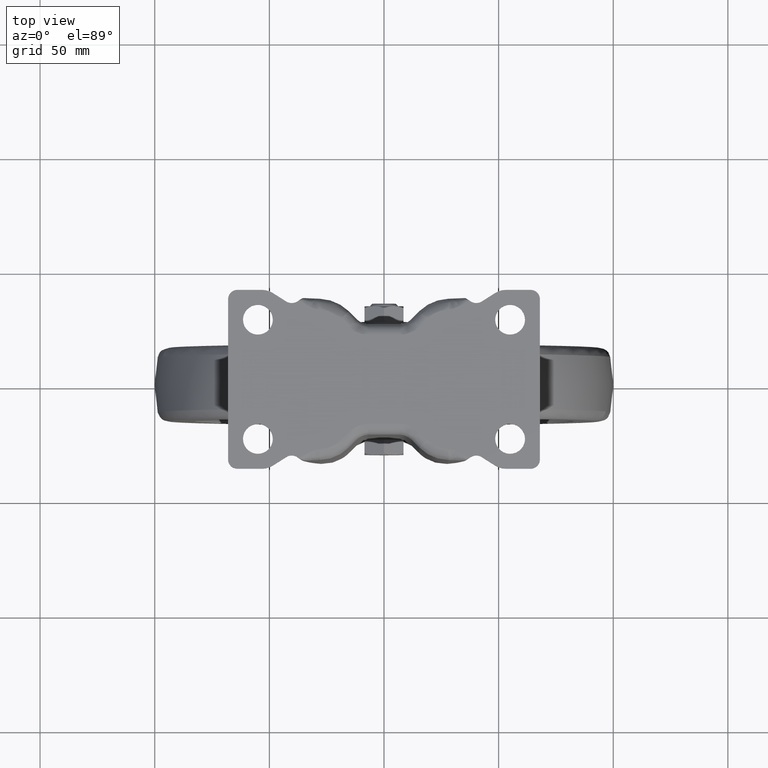
[diagram: clean part render]
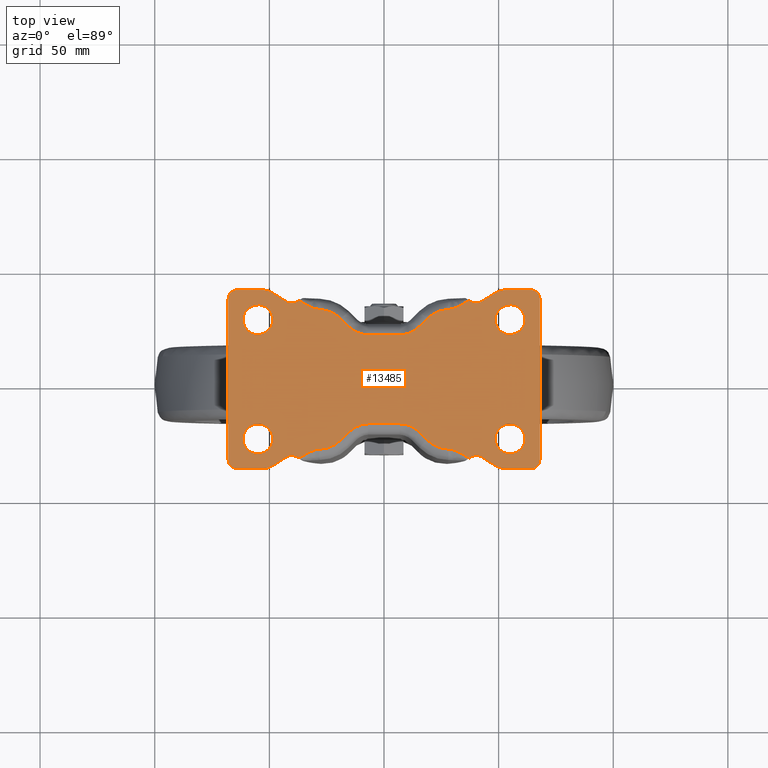
[diagram: same view with one face highlighted and labeled with its STEP entity id]
A machine part, top view. The second image highlights one B-rep face of the part: STEP entity #13485.
In plain terms, the highlighted face is a freeform B-spline surface patch.
Its self-contained STEP definition (entity closure, byte-faithful):
#4586=CARTESIAN_POINT('',(-55.396815507575141,19.512123810294479,-4.163336E-017));
#4587=VERTEX_POINT('',#4586);
#4593=CARTESIAN_POINT('',(-48.500000000000000,26.0,0.0));
#4594=VERTEX_POINT('',#4593);
#4595=CARTESIAN_POINT('',(-55.396815507575141,19.512123810294479,0.0));
#4596=CARTESIAN_POINT('',(-55.198592961740950,19.499999999999996,0.0));
#4597=CARTESIAN_POINT('',(-55.0,19.500000000000000,0.0));
#4598=CARTESIAN_POINT('',(-48.500000000000014,19.500000000000007,0.0));
#4599=CARTESIAN_POINT('',(-48.500000000000000,26.0,0.0));
#4607=(BOUNDED_CURVE()B_SPLINE_CURVE(2,(#4595,#4596,#4597,#4598,#4599),.UNSPECIFIED.,.F.,.U.)B_SPLINE_CURVE_WITH_KNOTS((3,2,3),(0.239332962226049,0.250000000000000,0.500000000000000),.UNSPECIFIED.)CURVE()GEOMETRIC_REPRESENTATION_ITEM()RATIONAL_B_SPLINE_CURVE((0.976072041639084,0.987502787884732,1.0,0.707106781186547,1.0))REPRESENTATION_ITEM(''));
#4608=EDGE_CURVE('',#4587,#4594,#4607,.T.);
#4610=CARTESIAN_POINT('',(-54.603184492424859,32.487876189705517,-4.163336E-017));
#4611=VERTEX_POINT('',#4610);
#4612=CARTESIAN_POINT('',(-48.500000000000000,26.0,0.0));
#4613=CARTESIAN_POINT('',(-48.500000000000014,32.114589434321836,0.0));
#4614=CARTESIAN_POINT('',(-54.603184492424859,32.487876189705531,0.0));
#4622=(BOUNDED_CURVE()B_SPLINE_CURVE(2,(#4612,#4613,#4614),.UNSPECIFIED.,.F.,.U.)B_SPLINE_CURVE_WITH_KNOTS((3,3),(0.500000000000000,0.739332962226049),.UNSPECIFIED.)CURVE()GEOMETRIC_REPRESENTATION_ITEM()RATIONAL_B_SPLINE_CURVE((1.0,0.719603993301816,0.976072041639084))REPRESENTATION_ITEM(''));
#4623=EDGE_CURVE('',#4594,#4611,#4622,.T.);
#4697=CARTESIAN_POINT('',(-61.500000000000000,26.0,0.0));
#4698=VERTEX_POINT('',#4697);
#4699=CARTESIAN_POINT('',(-54.603184492424859,32.487876189705517,0.0));
#4700=CARTESIAN_POINT('',(-54.801407038259050,32.499999999999986,0.0));
#4701=CARTESIAN_POINT('',(-55.0,32.500000000000000,0.0));
#4702=CARTESIAN_POINT('',(-61.500000000000021,32.499999999999993,0.0));
#4703=CARTESIAN_POINT('',(-61.500000000000000,26.0,0.0));
#4711=(BOUNDED_CURVE()B_SPLINE_CURVE(2,(#4699,#4700,#4701,#4702,#4703),.UNSPECIFIED.,.F.,.U.)B_SPLINE_CURVE_WITH_KNOTS((3,2,3),(0.739332962226049,0.750000000000000,1.0),.UNSPECIFIED.)CURVE()GEOMETRIC_REPRESENTATION_ITEM()RATIONAL_B_SPLINE_CURVE((0.976072041639084,0.987502787884731,1.0,0.707106781186547,1.0))REPRESENTATION_ITEM(''));
#4712=EDGE_CURVE('',#4611,#4698,#4711,.T.);
#4714=CARTESIAN_POINT('',(-61.500000000000000,26.0,0.0));
#4715=CARTESIAN_POINT('',(-61.500000000000014,19.885410565678168,0.0));
#4716=CARTESIAN_POINT('',(-55.396815507575141,19.512123810294472,0.0));
#4724=(BOUNDED_CURVE()B_SPLINE_CURVE(2,(#4714,#4715,#4716),.UNSPECIFIED.,.F.,.U.)B_SPLINE_CURVE_WITH_KNOTS((3,3),(0.0,0.239332962226049),.UNSPECIFIED.)CURVE()GEOMETRIC_REPRESENTATION_ITEM()RATIONAL_B_SPLINE_CURVE((1.0,0.719603993301816,0.976072041639084))REPRESENTATION_ITEM(''));
#4725=EDGE_CURVE('',#4698,#4587,#4724,.T.);
#4768=CARTESIAN_POINT('',(-55.396815507575127,-32.487876189705531,-4.163336E-017));
#4769=VERTEX_POINT('',#4768);
#4775=CARTESIAN_POINT('',(-48.500000000000000,-26.0,0.0));
#4776=VERTEX_POINT('',#4775);
#4777=CARTESIAN_POINT('',(-55.396815507575134,-32.487876189705531,0.0));
#4778=CARTESIAN_POINT('',(-55.198592961740950,-32.500000000000000,0.0));
#4779=CARTESIAN_POINT('',(-55.0,-32.500000000000000,0.0));
#4780=CARTESIAN_POINT('',(-48.500000000000014,-32.499999999999993,0.0));
#4781=CARTESIAN_POINT('',(-48.500000000000000,-26.0,0.0));
#4789=(BOUNDED_CURVE()B_SPLINE_CURVE(2,(#4777,#4778,#4779,#4780,#4781),.UNSPECIFIED.,.F.,.U.)B_SPLINE_CURVE_WITH_KNOTS((3,2,3),(0.239332962226049,0.250000000000000,0.500000000000000),.UNSPECIFIED.)CURVE()GEOMETRIC_REPRESENTATION_ITEM()RATIONAL_B_SPLINE_CURVE((0.976072041639084,0.987502787884732,1.0,0.707106781186547,1.0))REPRESENTATION_ITEM(''));
#4790=EDGE_CURVE('',#4769,#4776,#4789,.T.);
#4792=CARTESIAN_POINT('',(-54.603184492424859,-19.512123810294479,-4.163336E-017));
#4793=VERTEX_POINT('',#4792);
#4794=CARTESIAN_POINT('',(-48.500000000000000,-26.0,0.0));
#4795=CARTESIAN_POINT('',(-48.500000000000014,-19.885410565678168,0.0));
#4796=CARTESIAN_POINT('',(-54.603184492424859,-19.512123810294479,0.0));
#4804=(BOUNDED_CURVE()B_SPLINE_CURVE(2,(#4794,#4795,#4796),.UNSPECIFIED.,.F.,.U.)B_SPLINE_CURVE_WITH_KNOTS((3,3),(0.500000000000000,0.739332962226049),.UNSPECIFIED.)CURVE()GEOMETRIC_REPRESENTATION_ITEM()RATIONAL_B_SPLINE_CURVE((1.0,0.719603993301816,0.976072041639084))REPRESENTATION_ITEM(''));
#4805=EDGE_CURVE('',#4776,#4793,#4804,.T.);
#4879=CARTESIAN_POINT('',(-61.500000000000000,-26.0,0.0));
#4880=VERTEX_POINT('',#4879);
#4881=CARTESIAN_POINT('',(-54.603184492424859,-19.512123810294469,0.0));
#4882=CARTESIAN_POINT('',(-54.801407038259050,-19.500000000000000,0.0));
#4883=CARTESIAN_POINT('',(-55.0,-19.500000000000000,0.0));
#4884=CARTESIAN_POINT('',(-61.500000000000021,-19.500000000000007,0.0));
#4885=CARTESIAN_POINT('',(-61.500000000000000,-26.0,0.0));
#4893=(BOUNDED_CURVE()B_SPLINE_CURVE(2,(#4881,#4882,#4883,#4884,#4885),.UNSPECIFIED.,.F.,.U.)B_SPLINE_CURVE_WITH_KNOTS((3,2,3),(0.739332962226049,0.750000000000000,1.0),.UNSPECIFIED.)CURVE()GEOMETRIC_REPRESENTATION_ITEM()RATIONAL_B_SPLINE_CURVE((0.976072041639084,0.987502787884731,1.0,0.707106781186547,1.0))REPRESENTATION_ITEM(''));
#4894=EDGE_CURVE('',#4793,#4880,#4893,.T.);
#4896=CARTESIAN_POINT('',(-61.500000000000000,-26.0,0.0));
#4897=CARTESIAN_POINT('',(-61.500000000000007,-32.114589434321850,0.0));
#4898=CARTESIAN_POINT('',(-55.396815507575134,-32.487876189705517,0.0));
#4906=(BOUNDED_CURVE()B_SPLINE_CURVE(2,(#4896,#4897,#4898),.UNSPECIFIED.,.F.,.U.)B_SPLINE_CURVE_WITH_KNOTS((3,3),(0.0,0.239332962226050),.UNSPECIFIED.)CURVE()GEOMETRIC_REPRESENTATION_ITEM()RATIONAL_B_SPLINE_CURVE((1.0,0.719603993301816,0.976072041639085))REPRESENTATION_ITEM(''));
#4907=EDGE_CURVE('',#4880,#4769,#4906,.T.);
#4950=CARTESIAN_POINT('',(54.603184492424873,19.512123810294479,-4.163336E-017));
#4951=VERTEX_POINT('',#4950);
#4957=CARTESIAN_POINT('',(61.500000000000000,26.0,0.0));
#4958=VERTEX_POINT('',#4957);
#4959=CARTESIAN_POINT('',(54.603184492424873,19.512123810294472,0.0));
#4960=CARTESIAN_POINT('',(54.801407038259050,19.500000000000004,0.0));
#4961=CARTESIAN_POINT('',(55.0,19.500000000000000,0.0));
#4962=CARTESIAN_POINT('',(61.500000000000021,19.500000000000007,0.0));
#4963=CARTESIAN_POINT('',(61.500000000000000,26.0,0.0));
#4971=(BOUNDED_CURVE()B_SPLINE_CURVE(2,(#4959,#4960,#4961,#4962,#4963),.UNSPECIFIED.,.F.,.U.)B_SPLINE_CURVE_WITH_KNOTS((3,2,3),(0.239332962226049,0.250000000000000,0.500000000000000),.UNSPECIFIED.)CURVE()GEOMETRIC_REPRESENTATION_ITEM()RATIONAL_B_SPLINE_CURVE((0.976072041639084,0.987502787884732,1.0,0.707106781186547,1.0))REPRESENTATION_ITEM(''));
#4972=EDGE_CURVE('',#4951,#4958,#4971,.T.);
#4974=CARTESIAN_POINT('',(55.396815507575127,32.487876189705517,-4.163336E-017));
#4975=VERTEX_POINT('',#4974);
#4976=CARTESIAN_POINT('',(61.500000000000000,26.0,0.0));
#4977=CARTESIAN_POINT('',(61.500000000000007,32.114589434321836,0.0));
#4978=CARTESIAN_POINT('',(55.396815507575134,32.487876189705517,0.0));
#4986=(BOUNDED_CURVE()B_SPLINE_CURVE(2,(#4976,#4977,#4978),.UNSPECIFIED.,.F.,.U.)B_SPLINE_CURVE_WITH_KNOTS((3,3),(0.500000000000000,0.739332962226050),.UNSPECIFIED.)CURVE()GEOMETRIC_REPRESENTATION_ITEM()RATIONAL_B_SPLINE_CURVE((1.0,0.719603993301816,0.976072041639085))REPRESENTATION_ITEM(''));
#4987=EDGE_CURVE('',#4958,#4975,#4986,.T.);
#5061=CARTESIAN_POINT('',(48.500000000000000,26.0,0.0));
#5062=VERTEX_POINT('',#5061);
#5063=CARTESIAN_POINT('',(55.396815507575134,32.487876189705517,0.0));
#5064=CARTESIAN_POINT('',(55.198592961740957,32.500000000000007,0.0));
#5065=CARTESIAN_POINT('',(55.0,32.500000000000000,0.0));
#5066=CARTESIAN_POINT('',(48.500000000000014,32.499999999999993,0.0));
#5067=CARTESIAN_POINT('',(48.500000000000000,26.0,0.0));
#5075=(BOUNDED_CURVE()B_SPLINE_CURVE(2,(#5063,#5064,#5065,#5066,#5067),.UNSPECIFIED.,.F.,.U.)B_SPLINE_CURVE_WITH_KNOTS((3,2,3),(0.739332962226050,0.750000000000000,1.0),.UNSPECIFIED.)CURVE()GEOMETRIC_REPRESENTATION_ITEM()RATIONAL_B_SPLINE_CURVE((0.976072041639085,0.987502787884732,1.0,0.707106781186547,1.0))REPRESENTATION_ITEM(''));
#5076=EDGE_CURVE('',#4975,#5062,#5075,.T.);
#5078=CARTESIAN_POINT('',(48.500000000000000,26.0,0.0));
#5079=CARTESIAN_POINT('',(48.500000000000014,19.885410565678168,0.0));
#5080=CARTESIAN_POINT('',(54.603184492424859,19.512123810294479,0.0));
#5088=(BOUNDED_CURVE()B_SPLINE_CURVE(2,(#5078,#5079,#5080),.UNSPECIFIED.,.F.,.U.)B_SPLINE_CURVE_WITH_KNOTS((3,3),(0.0,0.239332962226049),.UNSPECIFIED.)CURVE()GEOMETRIC_REPRESENTATION_ITEM()RATIONAL_B_SPLINE_CURVE((1.0,0.719603993301816,0.976072041639084))REPRESENTATION_ITEM(''));
#5089=EDGE_CURVE('',#5062,#4951,#5088,.T.);
#5132=CARTESIAN_POINT('',(54.603184492424873,-32.487876189705517,-4.163336E-017));
#5133=VERTEX_POINT('',#5132);
#5139=CARTESIAN_POINT('',(61.500000000000000,-26.0,0.0));
#5140=VERTEX_POINT('',#5139);
#5141=CARTESIAN_POINT('',(54.603184492424873,-32.487876189705524,0.0));
#5142=CARTESIAN_POINT('',(54.801407038259050,-32.500000000000000,0.0));
#5143=CARTESIAN_POINT('',(55.0,-32.500000000000000,0.0));
#5144=CARTESIAN_POINT('',(61.500000000000021,-32.499999999999993,0.0));
#5145=CARTESIAN_POINT('',(61.500000000000000,-26.0,0.0));
#5153=(BOUNDED_CURVE()B_SPLINE_CURVE(2,(#5141,#5142,#5143,#5144,#5145),.UNSPECIFIED.,.F.,.U.)B_SPLINE_CURVE_WITH_KNOTS((3,2,3),(0.239332962226049,0.250000000000000,0.500000000000000),.UNSPECIFIED.)CURVE()GEOMETRIC_REPRESENTATION_ITEM()RATIONAL_B_SPLINE_CURVE((0.976072041639084,0.987502787884732,1.0,0.707106781186547,1.0))REPRESENTATION_ITEM(''));
#5154=EDGE_CURVE('',#5133,#5140,#5153,.T.);
#5156=CARTESIAN_POINT('',(55.396815507575127,-19.512123810294479,-4.163336E-017));
#5157=VERTEX_POINT('',#5156);
#5158=CARTESIAN_POINT('',(61.500000000000000,-26.0,0.0));
#5159=CARTESIAN_POINT('',(61.500000000000007,-19.885410565678146,0.0));
#5160=CARTESIAN_POINT('',(55.396815507575134,-19.512123810294476,0.0));
#5168=(BOUNDED_CURVE()B_SPLINE_CURVE(2,(#5158,#5159,#5160),.UNSPECIFIED.,.F.,.U.)B_SPLINE_CURVE_WITH_KNOTS((3,3),(0.500000000000000,0.739332962226050),.UNSPECIFIED.)CURVE()GEOMETRIC_REPRESENTATION_ITEM()RATIONAL_B_SPLINE_CURVE((1.0,0.719603993301816,0.976072041639085))REPRESENTATION_ITEM(''));
#5169=EDGE_CURVE('',#5140,#5157,#5168,.T.);
#5243=CARTESIAN_POINT('',(48.500000000000000,-26.0,0.0));
#5244=VERTEX_POINT('',#5243);
#5245=CARTESIAN_POINT('',(55.396815507575134,-19.512123810294476,0.0));
#5246=CARTESIAN_POINT('',(55.198592961740957,-19.500000000000011,0.0));
#5247=CARTESIAN_POINT('',(55.0,-19.500000000000000,0.0));
#5248=CARTESIAN_POINT('',(48.500000000000014,-19.500000000000007,0.0));
#5249=CARTESIAN_POINT('',(48.500000000000000,-26.0,0.0));
#5257=(BOUNDED_CURVE()B_SPLINE_CURVE(2,(#5245,#5246,#5247,#5248,#5249),.UNSPECIFIED.,.F.,.U.)B_SPLINE_CURVE_WITH_KNOTS((3,2,3),(0.739332962226050,0.750000000000000,1.0),.UNSPECIFIED.)CURVE()GEOMETRIC_REPRESENTATION_ITEM()RATIONAL_B_SPLINE_CURVE((0.976072041639085,0.987502787884732,1.0,0.707106781186547,1.0))REPRESENTATION_ITEM(''));
#5258=EDGE_CURVE('',#5157,#5244,#5257,.T.);
#5260=CARTESIAN_POINT('',(48.500000000000000,-26.0,0.0));
#5261=CARTESIAN_POINT('',(48.500000000000014,-32.114589434321836,0.0));
#5262=CARTESIAN_POINT('',(54.603184492424859,-32.487876189705531,0.0));
#5270=(BOUNDED_CURVE()B_SPLINE_CURVE(2,(#5260,#5261,#5262),.UNSPECIFIED.,.F.,.U.)B_SPLINE_CURVE_WITH_KNOTS((3,3),(0.0,0.239332962226049),.UNSPECIFIED.)CURVE()GEOMETRIC_REPRESENTATION_ITEM()RATIONAL_B_SPLINE_CURVE((1.0,0.719603993301816,0.976072041639084))REPRESENTATION_ITEM(''));
#5271=EDGE_CURVE('',#5244,#5133,#5270,.T.);
#9097=CARTESIAN_POINT('',(-48.500957000000000,-37.649311999999902,0.0));
#9098=VERTEX_POINT('',#9097);
#9104=CARTESIAN_POINT('',(-53.156879000000004,-39.0,0.0));
#9105=VERTEX_POINT('',#9104);
#9106=CARTESIAN_POINT('',(-48.500957000000000,-37.649311999999902,0.0));
#9107=CARTESIAN_POINT('',(-50.632999976314871,-39.0,0.0));
#9108=CARTESIAN_POINT('',(-53.156879000000004,-39.0,0.0));
#9116=(BOUNDED_CURVE()B_SPLINE_CURVE(2,(#9106,#9107,#9108),.UNSPECIFIED.,.F.,.U.)CURVE()GEOMETRIC_REPRESENTATION_ITEM()QUASI_UNIFORM_CURVE()RATIONAL_B_SPLINE_CURVE((1.0,0.960403177065730,1.0))REPRESENTATION_ITEM(''));
#9117=EDGE_CURVE('',#9098,#9105,#9116,.T.);
#9142=CARTESIAN_POINT('',(-42.659483057243300,-33.948631669782948,0.0));
#9143=VERTEX_POINT('',#9142);
#9149=CARTESIAN_POINT('',(-42.659483057243300,-33.948631669782948,0.0));
#9150=CARTESIAN_POINT('',(-48.500957000000000,-37.649311999999902,0.0));
#9151=QUASI_UNIFORM_CURVE('',1,(#9149,#9150),.UNSPECIFIED.,.F.,.U.);
#9152=EDGE_CURVE('',#9143,#9098,#9151,.T.);
#9165=CARTESIAN_POINT('',(42.659481999999898,-33.948630999999999,0.0));
#9166=VERTEX_POINT('',#9165);
#9180=CARTESIAN_POINT('',(48.500956583210197,-37.649311971119012,0.0));
#9181=VERTEX_POINT('',#9180);
#9187=CARTESIAN_POINT('',(48.500956583210197,-37.649311971119012,0.0));
#9188=CARTESIAN_POINT('',(42.659481999999898,-33.948630999999999,0.0));
#9189=QUASI_UNIFORM_CURVE('',1,(#9187,#9188),.UNSPECIFIED.,.F.,.U.);
#9190=EDGE_CURVE('',#9181,#9166,#9189,.T.);
#9210=CARTESIAN_POINT('',(53.156879000000004,-39.0,0.0));
#9211=VERTEX_POINT('',#9210);
#9217=CARTESIAN_POINT('',(53.156879000000004,-39.0,0.0));
#9218=CARTESIAN_POINT('',(50.632999777079824,-39.0,0.0));
#9219=CARTESIAN_POINT('',(48.500956583210169,-37.649311971119047,0.0));
#9227=(BOUNDED_CURVE()B_SPLINE_CURVE(2,(#9217,#9218,#9219),.UNSPECIFIED.,.F.,.U.)CURVE()GEOMETRIC_REPRESENTATION_ITEM()QUASI_UNIFORM_CURVE()RATIONAL_B_SPLINE_CURVE((1.0,0.960403171180593,1.0))REPRESENTATION_ITEM(''));
#9228=EDGE_CURVE('',#9211,#9181,#9227,.T.);
#9240=CARTESIAN_POINT('',(64.0,-39.0,0.0));
#9241=VERTEX_POINT('',#9240);
#9247=CARTESIAN_POINT('',(64.0,-39.0,0.0));
#9248=CARTESIAN_POINT('',(53.156879000000004,-39.0,0.0));
#9249=QUASI_UNIFORM_CURVE('',1,(#9247,#9248),.UNSPECIFIED.,.F.,.U.);
#9250=EDGE_CURVE('',#9241,#9211,#9249,.T.);
#9271=CARTESIAN_POINT('',(68.0,-35.0,0.0));
#9272=VERTEX_POINT('',#9271);
#9278=CARTESIAN_POINT('',(68.0,-35.0,0.0));
#9279=CARTESIAN_POINT('',(68.000000000000014,-39.000000000000007,0.0));
#9280=CARTESIAN_POINT('',(64.0,-39.000000000000007,0.0));
#9288=(BOUNDED_CURVE()B_SPLINE_CURVE(2,(#9278,#9279,#9280),.UNSPECIFIED.,.F.,.U.)CURVE()GEOMETRIC_REPRESENTATION_ITEM()QUASI_UNIFORM_CURVE()RATIONAL_B_SPLINE_CURVE((1.0,0.707106781186548,1.0))REPRESENTATION_ITEM(''));
#9289=EDGE_CURVE('',#9272,#9241,#9288,.T.);
#9301=CARTESIAN_POINT('',(68.0,35.0,0.0));
#9302=VERTEX_POINT('',#9301);
#9308=CARTESIAN_POINT('',(68.0,35.0,0.0));
#9309=CARTESIAN_POINT('',(68.0,-35.0,0.0));
#9310=QUASI_UNIFORM_CURVE('',1,(#9308,#9309),.UNSPECIFIED.,.F.,.U.);
#9311=EDGE_CURVE('',#9302,#9272,#9310,.T.);
#9332=CARTESIAN_POINT('',(64.0,39.0,0.0));
#9333=VERTEX_POINT('',#9332);
#9339=CARTESIAN_POINT('',(64.0,39.000000000000007,0.0));
#9340=CARTESIAN_POINT('',(68.000000000000014,39.000000000000007,0.0));
#9341=CARTESIAN_POINT('',(68.0,35.0,0.0));
#9349=(BOUNDED_CURVE()B_SPLINE_CURVE(2,(#9339,#9340,#9341),.UNSPECIFIED.,.F.,.U.)CURVE()GEOMETRIC_REPRESENTATION_ITEM()QUASI_UNIFORM_CURVE()RATIONAL_B_SPLINE_CURVE((1.0,0.707106781186548,1.0))REPRESENTATION_ITEM(''));
#9350=EDGE_CURVE('',#9333,#9302,#9349,.T.);
#9362=CARTESIAN_POINT('',(53.156879000000004,39.0,0.0));
#9363=VERTEX_POINT('',#9362);
#9369=CARTESIAN_POINT('',(53.156879000000004,39.0,0.0));
#9370=CARTESIAN_POINT('',(64.0,39.0,0.0));
#9371=QUASI_UNIFORM_CURVE('',1,(#9369,#9370),.UNSPECIFIED.,.F.,.U.);
#9372=EDGE_CURVE('',#9363,#9333,#9371,.T.);
#9393=CARTESIAN_POINT('',(48.500956999999900,37.649311999999902,0.0));
#9394=VERTEX_POINT('',#9393);
#9400=CARTESIAN_POINT('',(48.500956999999900,37.649311999999902,0.0));
#9401=CARTESIAN_POINT('',(50.632999976314828,39.0,0.0));
#9402=CARTESIAN_POINT('',(53.156879000000004,39.0,0.0));
#9410=(BOUNDED_CURVE()B_SPLINE_CURVE(2,(#9400,#9401,#9402),.UNSPECIFIED.,.F.,.U.)CURVE()GEOMETRIC_REPRESENTATION_ITEM()QUASI_UNIFORM_CURVE()RATIONAL_B_SPLINE_CURVE((1.0,0.960403177065728,1.0))REPRESENTATION_ITEM(''));
#9411=EDGE_CURVE('',#9394,#9363,#9410,.T.);
#9424=CARTESIAN_POINT('',(42.659483057243143,33.948631669782863,0.0));
#9425=VERTEX_POINT('',#9424);
#9431=CARTESIAN_POINT('',(42.659483057243143,33.948631669782863,0.0));
#9432=CARTESIAN_POINT('',(48.500956999999900,37.649311999999902,0.0));
#9433=QUASI_UNIFORM_CURVE('',1,(#9431,#9432),.UNSPECIFIED.,.F.,.U.);
#9434=EDGE_CURVE('',#9425,#9394,#9433,.T.);
#9445=CARTESIAN_POINT('',(-42.659481999999997,33.948630999999999,0.0));
#9446=VERTEX_POINT('',#9445);
#9454=CARTESIAN_POINT('',(-48.500956583210197,37.649311971119012,0.0));
#9455=VERTEX_POINT('',#9454);
#9461=CARTESIAN_POINT('',(-48.500956583210197,37.649311971119012,0.0));
#9462=CARTESIAN_POINT('',(-42.659481999999997,33.948630999999999,0.0));
#9463=QUASI_UNIFORM_CURVE('',1,(#9461,#9462),.UNSPECIFIED.,.F.,.U.);
#9464=EDGE_CURVE('',#9455,#9446,#9463,.T.);
#9484=CARTESIAN_POINT('',(-53.156879000000004,39.0,0.0));
#9485=VERTEX_POINT('',#9484);
#9491=CARTESIAN_POINT('',(-53.156879000000004,39.0,0.0));
#9492=CARTESIAN_POINT('',(-50.632999777079824,39.0,0.0));
#9493=CARTESIAN_POINT('',(-48.500956583210169,37.649311971119047,0.0));
#9501=(BOUNDED_CURVE()B_SPLINE_CURVE(2,(#9491,#9492,#9493),.UNSPECIFIED.,.F.,.U.)CURVE()GEOMETRIC_REPRESENTATION_ITEM()QUASI_UNIFORM_CURVE()RATIONAL_B_SPLINE_CURVE((1.0,0.960403171180593,1.0))REPRESENTATION_ITEM(''));
#9502=EDGE_CURVE('',#9485,#9455,#9501,.T.);
#9514=CARTESIAN_POINT('',(-64.0,39.0,0.0));
#9515=VERTEX_POINT('',#9514);
#9521=CARTESIAN_POINT('',(-64.0,39.0,0.0));
#9522=CARTESIAN_POINT('',(-53.156879000000004,39.0,0.0));
#9523=QUASI_UNIFORM_CURVE('',1,(#9521,#9522),.UNSPECIFIED.,.F.,.U.);
#9524=EDGE_CURVE('',#9515,#9485,#9523,.T.);
#9545=CARTESIAN_POINT('',(-68.0,35.0,0.0));
#9546=VERTEX_POINT('',#9545);
#9552=CARTESIAN_POINT('',(-68.0,35.0,0.0));
#9553=CARTESIAN_POINT('',(-68.000000000000014,39.000000000000007,0.0));
#9554=CARTESIAN_POINT('',(-64.0,39.000000000000007,0.0));
#9562=(BOUNDED_CURVE()B_SPLINE_CURVE(2,(#9552,#9553,#9554),.UNSPECIFIED.,.F.,.U.)CURVE()GEOMETRIC_REPRESENTATION_ITEM()QUASI_UNIFORM_CURVE()RATIONAL_B_SPLINE_CURVE((1.0,0.707106781186548,1.0))REPRESENTATION_ITEM(''));
#9563=EDGE_CURVE('',#9546,#9515,#9562,.T.);
#9575=CARTESIAN_POINT('',(-68.0,-35.0,0.0));
#9576=VERTEX_POINT('',#9575);
#9582=CARTESIAN_POINT('',(-68.0,-35.0,0.0));
#9583=CARTESIAN_POINT('',(-68.0,35.0,0.0));
#9584=QUASI_UNIFORM_CURVE('',1,(#9582,#9583),.UNSPECIFIED.,.F.,.U.);
#9585=EDGE_CURVE('',#9576,#9546,#9584,.T.);
#9606=CARTESIAN_POINT('',(-64.0,-39.0,0.0));
#9607=VERTEX_POINT('',#9606);
#9613=CARTESIAN_POINT('',(-64.0,-39.000000000000007,0.0));
#9614=CARTESIAN_POINT('',(-68.000000000000014,-39.000000000000007,0.0));
#9615=CARTESIAN_POINT('',(-68.0,-35.0,0.0));
#9623=(BOUNDED_CURVE()B_SPLINE_CURVE(2,(#9613,#9614,#9615),.UNSPECIFIED.,.F.,.U.)CURVE()GEOMETRIC_REPRESENTATION_ITEM()QUASI_UNIFORM_CURVE()RATIONAL_B_SPLINE_CURVE((1.0,0.707106781186548,1.0))REPRESENTATION_ITEM(''));
#9624=EDGE_CURVE('',#9607,#9576,#9623,.T.);
#9637=CARTESIAN_POINT('',(-53.156879000000004,-39.0,0.0));
#9638=CARTESIAN_POINT('',(-64.0,-39.0,0.0));
#9639=QUASI_UNIFORM_CURVE('',1,(#9637,#9638),.UNSPECIFIED.,.F.,.U.);
#9640=EDGE_CURVE('',#9105,#9607,#9639,.T.);
#9776=CARTESIAN_POINT('',(-37.805938000000197,-33.972372999999997,0.0));
#9777=VERTEX_POINT('',#9776);
#9783=CARTESIAN_POINT('',(-42.659483057243307,-33.948631669782941,0.0));
#9784=CARTESIAN_POINT('',(-40.225108622377846,-32.406411046054828,0.0));
#9785=CARTESIAN_POINT('',(-37.805938000000303,-33.972373000000161,0.0));
#9793=(BOUNDED_CURVE()B_SPLINE_CURVE(2,(#9783,#9784,#9785),.UNSPECIFIED.,.F.,.U.)CURVE()GEOMETRIC_REPRESENTATION_ITEM()QUASI_UNIFORM_CURVE()RATIONAL_B_SPLINE_CURVE((1.0,0.842120608987146,1.0))REPRESENTATION_ITEM(''));
#9794=EDGE_CURVE('',#9143,#9777,#9793,.T.);
#9813=CARTESIAN_POINT('',(-37.151944854033552,-34.395711366092698,0.0));
#9814=VERTEX_POINT('',#9813);
#9832=CARTESIAN_POINT('',(-37.151944854033552,-34.395711366092698,0.0));
#9833=CARTESIAN_POINT('',(-37.805938000000197,-33.972372999999997,0.0));
#9834=QUASI_UNIFORM_CURVE('',1,(#9832,#9833),.UNSPECIFIED.,.F.,.U.);
#9835=EDGE_CURVE('',#9814,#9777,#9834,.T.);
#9870=CARTESIAN_POINT('',(37.805939087237697,-33.972372296216662,0.0));
#9871=VERTEX_POINT('',#9870);
#9905=CARTESIAN_POINT('',(37.805939087237697,-33.972372296216669,0.0));
#9906=CARTESIAN_POINT('',(40.225108652998259,-32.406412014237453,0.0));
#9907=CARTESIAN_POINT('',(42.659481999999826,-33.948631000000113,0.0));
#9915=(BOUNDED_CURVE()B_SPLINE_CURVE(2,(#9905,#9906,#9907),.UNSPECIFIED.,.F.,.U.)CURVE()GEOMETRIC_REPRESENTATION_ITEM()QUASI_UNIFORM_CURVE()RATIONAL_B_SPLINE_CURVE((1.0,0.842120761587477,1.0))REPRESENTATION_ITEM(''));
#9916=EDGE_CURVE('',#9871,#9166,#9915,.T.);
#9937=CARTESIAN_POINT('',(37.805937999999898,33.972372999999997,0.0));
#9938=VERTEX_POINT('',#9937);
#9944=CARTESIAN_POINT('',(42.659483057243158,33.948631669782841,0.0));
#9945=CARTESIAN_POINT('',(40.225108622377590,32.406411046054657,0.0));
#9946=CARTESIAN_POINT('',(37.805938000000012,33.972373000000161,0.0));
#9954=(BOUNDED_CURVE()B_SPLINE_CURVE(2,(#9944,#9945,#9946),.UNSPECIFIED.,.F.,.U.)CURVE()GEOMETRIC_REPRESENTATION_ITEM()QUASI_UNIFORM_CURVE()RATIONAL_B_SPLINE_CURVE((1.0,0.842120608987136,1.0))REPRESENTATION_ITEM(''));
#9955=EDGE_CURVE('',#9425,#9938,#9954,.T.);
#9966=CARTESIAN_POINT('',(37.151944854033452,34.395711366092662,0.0));
#9967=VERTEX_POINT('',#9966);
#9985=CARTESIAN_POINT('',(37.151944854033452,34.395711366092662,0.0));
#9986=CARTESIAN_POINT('',(37.805937999999898,33.972372999999997,0.0));
#9987=QUASI_UNIFORM_CURVE('',1,(#9985,#9986),.UNSPECIFIED.,.F.,.U.);
#9988=EDGE_CURVE('',#9967,#9938,#9987,.T.);
#10350=CARTESIAN_POINT('',(-37.805939087238137,33.972372296216598,0.0));
#10351=VERTEX_POINT('',#10350);
#10352=CARTESIAN_POINT('',(-37.151944802678308,34.395711399335653,0.0));
#10353=VERTEX_POINT('',#10352);
#10354=CARTESIAN_POINT('',(-37.805939087238137,33.972372296216598,0.0));
#10355=CARTESIAN_POINT('',(-37.151944802678308,34.395711399335653,0.0));
#10356=QUASI_UNIFORM_CURVE('',1,(#10354,#10355),.UNSPECIFIED.,.F.,.U.);
#10357=EDGE_CURVE('',#10351,#10353,#10356,.T.);
#10410=CARTESIAN_POINT('',(-37.805939087238137,33.972372296216577,0.0));
#10411=CARTESIAN_POINT('',(-40.225108652998543,32.406412014237702,0.0));
#10412=CARTESIAN_POINT('',(-42.659481999999912,33.948631000000162,0.0));
#10420=(BOUNDED_CURVE()B_SPLINE_CURVE(2,(#10410,#10411,#10412),.UNSPECIFIED.,.F.,.U.)CURVE()GEOMETRIC_REPRESENTATION_ITEM()QUASI_UNIFORM_CURVE()RATIONAL_B_SPLINE_CURVE((1.0,0.842120761587503,1.0))REPRESENTATION_ITEM(''));
#10421=EDGE_CURVE('',#10351,#9446,#10420,.T.);
#11572=CARTESIAN_POINT('',(32.690883623419403,31.857893881145142,0.0));
#11573=VERTEX_POINT('',#11572);
#11574=CARTESIAN_POINT('',(28.188340810061948,30.506529141638250,0.0));
#11575=VERTEX_POINT('',#11574);
#11576=CARTESIAN_POINT('',(32.690883623419388,31.857893881145142,0.0));
#11577=CARTESIAN_POINT('',(31.200402106850898,31.110948993003220,0.0));
#11578=CARTESIAN_POINT('',(29.703085893275620,30.559489534578610,0.0));
#11579=CARTESIAN_POINT('',(28.188340781215349,30.506529966704850,0.0));
#11580=B_SPLINE_CURVE_WITH_KNOTS('',3,(#11576,#11577,#11578,#11579),.UNSPECIFIED.,.F.,.U.,(4,4),(0.593090399854748,1.0),.UNSPECIFIED.);
#11581=EDGE_CURVE('',#11573,#11575,#11580,.T.);
#11583=CARTESIAN_POINT('',(37.151944854033452,34.395711366092662,0.0));
#11584=CARTESIAN_POINT('',(36.598622575947459,34.070828623992838,0.0));
#11585=CARTESIAN_POINT('',(35.860713837649932,33.637793662926867,0.0));
#11586=CARTESIAN_POINT('',(35.123156218884382,33.204105290455637,0.0));
#11587=CARTESIAN_POINT('',(34.199472613425982,32.665349540984202,0.0));
#11588=CARTESIAN_POINT('',(33.455760125598523,32.241498152068623,0.0));
#11589=CARTESIAN_POINT('',(32.690883623419403,31.857893881145142,0.0));
#11590=B_SPLINE_CURVE_WITH_KNOTS('',3,(#11583,#11584,#11585,#11586,#11587,#11588,#11589),.UNSPECIFIED.,.F.,.U.,(4,1,2,4),(-0.000003517308926,1.924949448417062,2.566783913696573,5.133330880343441),.UNSPECIFIED.);
#11591=EDGE_CURVE('',#9967,#11573,#11590,.T.);
#11629=CARTESIAN_POINT('',(18.683995750460401,26.421793239017351,0.0));
#11630=VERTEX_POINT('',#11629);
#11644=CARTESIAN_POINT('',(28.188340810061948,30.506529141638261,0.0));
#11645=CARTESIAN_POINT('',(22.641752134708902,30.312605091781244,0.0));
#11646=CARTESIAN_POINT('',(18.683995750460380,26.421793239017369,0.0));
#11654=(BOUNDED_CURVE()B_SPLINE_CURVE(2,(#11644,#11645,#11646),.UNSPECIFIED.,.F.,.U.)CURVE()GEOMETRIC_REPRESENTATION_ITEM()QUASI_UNIFORM_CURVE()RATIONAL_B_SPLINE_CURVE((1.0,0.931979706467924,1.0))REPRESENTATION_ITEM(''));
#11655=EDGE_CURVE('',#11575,#11630,#11654,.T.);
#11679=CARTESIAN_POINT('',(15.351557353335100,23.059194278151001,0.0));
#11680=VERTEX_POINT('',#11679);
#11693=CARTESIAN_POINT('',(18.683995750460401,26.421793239017351,0.0));
#11694=CARTESIAN_POINT('',(16.995861125813413,24.762212615998664,0.0));
#11695=CARTESIAN_POINT('',(15.351557353335020,23.059194278151018,0.0));
#11703=(BOUNDED_CURVE()B_SPLINE_CURVE(2,(#11693,#11694,#11695),.UNSPECIFIED.,.F.,.U.)CURVE()GEOMETRIC_REPRESENTATION_ITEM()QUASI_UNIFORM_CURVE()RATIONAL_B_SPLINE_CURVE((1.0,0.999915057494091,1.0))REPRESENTATION_ITEM(''));
#11704=EDGE_CURVE('',#11630,#11680,#11703,.T.);
#11728=CARTESIAN_POINT('',(6.849839999999920,19.449999999999999,0.0));
#11729=VERTEX_POINT('',#11728);
#11743=CARTESIAN_POINT('',(15.351557353335100,23.059194278151001,0.0));
#11744=CARTESIAN_POINT('',(11.866795854217617,19.449999999999999,0.0));
#11745=CARTESIAN_POINT('',(6.849839999999920,19.449999999999999,0.0));
#11753=(BOUNDED_CURVE()B_SPLINE_CURVE(2,(#11743,#11744,#11745),.UNSPECIFIED.,.F.,.U.)CURVE()GEOMETRIC_REPRESENTATION_ITEM()QUASI_UNIFORM_CURVE()RATIONAL_B_SPLINE_CURVE((1.0,0.920488117445490,1.0))REPRESENTATION_ITEM(''));
#11754=EDGE_CURVE('',#11680,#11729,#11753,.T.);
#11775=CARTESIAN_POINT('',(-6.849839000000090,19.449999999999999,0.0));
#11776=VERTEX_POINT('',#11775);
#11790=CARTESIAN_POINT('',(6.849839999999920,19.449999999999999,0.0));
#11791=CARTESIAN_POINT('',(-6.849839000000090,19.449999999999999,0.0));
#11792=QUASI_UNIFORM_CURVE('',1,(#11790,#11791),.UNSPECIFIED.,.F.,.U.);
#11793=EDGE_CURVE('',#11729,#11776,#11792,.T.);
#11817=CARTESIAN_POINT('',(-15.351556781692651,23.059195270787299,0.0));
#11818=VERTEX_POINT('',#11817);
#11832=CARTESIAN_POINT('',(-6.849839000000090,19.449999999999999,0.0));
#11833=CARTESIAN_POINT('',(-11.866795451196120,19.450000000000003,0.0));
#11834=CARTESIAN_POINT('',(-15.351556781692640,23.059195270787310,0.0));
#11842=(BOUNDED_CURVE()B_SPLINE_CURVE(2,(#11832,#11833,#11834),.UNSPECIFIED.,.F.,.U.)CURVE()GEOMETRIC_REPRESENTATION_ITEM()QUASI_UNIFORM_CURVE()RATIONAL_B_SPLINE_CURVE((1.0,0.920488100719950,1.0))REPRESENTATION_ITEM(''));
#11843=EDGE_CURVE('',#11776,#11818,#11842,.T.);
#11867=CARTESIAN_POINT('',(-18.683994277064802,26.421792701638150,0.0));
#11868=VERTEX_POINT('',#11867);
#11882=CARTESIAN_POINT('',(-15.351556781692651,23.059195270787299,0.0));
#11883=CARTESIAN_POINT('',(-16.995860238457613,24.762212713680743,0.0));
#11884=CARTESIAN_POINT('',(-18.683994277064709,26.421792701638211,0.0));
#11892=(BOUNDED_CURVE()B_SPLINE_CURVE(2,(#11882,#11883,#11884),.UNSPECIFIED.,.F.,.U.)CURVE()GEOMETRIC_REPRESENTATION_ITEM()QUASI_UNIFORM_CURVE()RATIONAL_B_SPLINE_CURVE((1.0,0.999915057556024,1.0))REPRESENTATION_ITEM(''));
#11893=EDGE_CURVE('',#11818,#11868,#11892,.T.);
#11917=CARTESIAN_POINT('',(-28.188341342128400,30.506529160240749,0.0));
#11918=VERTEX_POINT('',#11917);
#11932=CARTESIAN_POINT('',(-18.683994277064802,26.421792701638150,0.0));
#11933=CARTESIAN_POINT('',(-22.641751532063232,30.312605277920973,0.0));
#11934=CARTESIAN_POINT('',(-28.188341342128400,30.506529160240760,0.0));
#11942=(BOUNDED_CURVE()B_SPLINE_CURVE(2,(#11932,#11933,#11934),.UNSPECIFIED.,.F.,.U.)CURVE()GEOMETRIC_REPRESENTATION_ITEM()QUASI_UNIFORM_CURVE()RATIONAL_B_SPLINE_CURVE((1.0,0.931979681571956,1.0))REPRESENTATION_ITEM(''));
#11943=EDGE_CURVE('',#11868,#11918,#11942,.T.);
#11986=CARTESIAN_POINT('',(-32.690883863869139,31.857893904377040,0.0));
#11987=VERTEX_POINT('',#11986);
#11988=CARTESIAN_POINT('',(-32.690883863869139,31.857893904377040,0.0));
#11989=CARTESIAN_POINT('',(-33.455780494520830,32.241508756973261,0.0));
#11990=CARTESIAN_POINT('',(-34.199512977838253,32.665371484306917,0.0));
#11991=CARTESIAN_POINT('',(-35.123180519616028,33.204119751982482,0.0));
#11992=CARTESIAN_POINT('',(-35.860718534641890,33.637796138638549,0.0));
#11993=CARTESIAN_POINT('',(-36.598607374188077,34.070819715509629,0.0));
#11994=CARTESIAN_POINT('',(-37.151944802678308,34.395711399335653,0.0));
#11995=B_SPLINE_CURVE_WITH_KNOTS('',3,(#11988,#11989,#11990,#11991,#11992,#11993,#11994),.UNSPECIFIED.,.F.,.U.,(4,2,1,4),(0.000014202137012,2.566620866929009,3.208331527852690,5.133330630973990),.UNSPECIFIED.);
#11996=EDGE_CURVE('',#11987,#10353,#11995,.T.);
#11998=CARTESIAN_POINT('',(-28.188341342128400,30.506529160240749,0.0));
#11999=CARTESIAN_POINT('',(-29.703086328309048,30.559489549788541,0.0));
#12000=CARTESIAN_POINT('',(-31.200402444603419,31.110949011911359,0.0));
#12001=CARTESIAN_POINT('',(-32.690883863869132,31.857893904377040,0.0));
#12002=B_SPLINE_CURVE_WITH_KNOTS('',3,(#11998,#11999,#12000,#12001),.UNSPECIFIED.,.F.,.U.,(4,4),(0.0,0.406909603039226),.UNSPECIFIED.);
#12003=EDGE_CURVE('',#11918,#11987,#12002,.T.);
#12026=CARTESIAN_POINT('',(-15.351556353335200,-23.059194278151100,0.0));
#12027=VERTEX_POINT('',#12026);
#12058=CARTESIAN_POINT('',(-6.849839000000090,-19.449999999999999,0.0));
#12059=VERTEX_POINT('',#12058);
#12073=CARTESIAN_POINT('',(-15.351556353335200,-23.059194278151100,0.0));
#12074=CARTESIAN_POINT('',(-11.866794854217806,-19.449999999999999,0.0));
#12075=CARTESIAN_POINT('',(-6.849839000000090,-19.449999999999999,0.0));
#12083=(BOUNDED_CURVE()B_SPLINE_CURVE(2,(#12073,#12074,#12075),.UNSPECIFIED.,.F.,.U.)CURVE()GEOMETRIC_REPRESENTATION_ITEM()QUASI_UNIFORM_CURVE()RATIONAL_B_SPLINE_CURVE((1.0,0.920488117445490,1.0))REPRESENTATION_ITEM(''));
#12084=EDGE_CURVE('',#12027,#12059,#12083,.T.);
#12106=CARTESIAN_POINT('',(-18.683995241931601,-26.421792739090101,0.0));
#12107=VERTEX_POINT('',#12106);
#12137=CARTESIAN_POINT('',(-18.683995241931601,-26.421792739090101,0.0));
#12138=CARTESIAN_POINT('',(-16.995860125813113,-24.762212615998383,0.0));
#12139=CARTESIAN_POINT('',(-15.351556353335180,-23.059194278151239,0.0));
#12147=(BOUNDED_CURVE()B_SPLINE_CURVE(2,(#12137,#12138,#12139),.UNSPECIFIED.,.F.,.U.)CURVE()GEOMETRIC_REPRESENTATION_ITEM()QUASI_UNIFORM_CURVE()RATIONAL_B_SPLINE_CURVE((1.0,0.999915057494091,1.0))REPRESENTATION_ITEM(''));
#12148=EDGE_CURVE('',#12107,#12027,#12147,.T.);
#12170=CARTESIAN_POINT('',(-28.188340781215398,-30.506529966704850,0.0));
#12171=VERTEX_POINT('',#12170);
#12201=CARTESIAN_POINT('',(-28.188340781215398,-30.506529966704850,0.0));
#12202=CARTESIAN_POINT('',(-22.641751724457993,-30.312605077437709,0.0));
#12203=CARTESIAN_POINT('',(-18.683995241931601,-26.421792739090112,0.0));
#12211=(BOUNDED_CURVE()B_SPLINE_CURVE(2,(#12201,#12202,#12203),.UNSPECIFIED.,.F.,.U.)CURVE()GEOMETRIC_REPRESENTATION_ITEM()QUASI_UNIFORM_CURVE()RATIONAL_B_SPLINE_CURVE((1.0,0.931979697409114,1.0))REPRESENTATION_ITEM(''));
#12212=EDGE_CURVE('',#12171,#12107,#12211,.T.);
#12250=CARTESIAN_POINT('',(-32.690883623419467,-31.857893881145159,0.0));
#12251=VERTEX_POINT('',#12250);
#12252=CARTESIAN_POINT('',(-32.690883623419467,-31.857893881145170,0.0));
#12253=CARTESIAN_POINT('',(-31.200402106850969,-31.110948993003230,0.0));
#12254=CARTESIAN_POINT('',(-29.703085893275681,-30.559489534578610,0.0));
#12255=CARTESIAN_POINT('',(-28.188340781215398,-30.506529966704850,0.0));
#12256=B_SPLINE_CURVE_WITH_KNOTS('',3,(#12252,#12253,#12254,#12255),.UNSPECIFIED.,.F.,.U.,(4,4),(0.593090399854745,1.0),.UNSPECIFIED.);
#12257=EDGE_CURVE('',#12251,#12171,#12256,.T.);
#12259=CARTESIAN_POINT('',(-37.151944854033552,-34.395711366092698,0.0));
#12260=CARTESIAN_POINT('',(-36.598622572384649,-34.070828633341463,0.0));
#12261=CARTESIAN_POINT('',(-35.860713857837432,-33.637793609957910,0.0));
#12262=CARTESIAN_POINT('',(-35.123156155171337,-33.204105457629993,0.0));
#12263=CARTESIAN_POINT('',(-34.199473020495823,-32.665348796892197,0.0));
#12264=CARTESIAN_POINT('',(-33.455759836664043,-32.241498453054973,0.0));
#12265=CARTESIAN_POINT('',(-32.690883623419467,-31.857893881145159,0.0));
#12266=B_SPLINE_CURVE_WITH_KNOTS('',3,(#12259,#12260,#12261,#12262,#12263,#12264,#12265),.UNSPECIFIED.,.F.,.U.,(4,1,2,4),(-0.000003517309008,1.924949448416962,2.566783913696472,5.133330880343480),.UNSPECIFIED.);
#12267=EDGE_CURVE('',#9814,#12251,#12266,.T.);
#13336=CARTESIAN_POINT('',(-74.793199736405597,-42.896099848820867,0.0));
#13337=CARTESIAN_POINT('',(74.793203384209875,-42.896099848820867,0.0));
#13338=CARTESIAN_POINT('',(-74.793199736405597,42.896101940943893,0.0));
#13339=CARTESIAN_POINT('',(74.793203384209875,42.896101940943893,0.0));
#13340=B_SPLINE_SURFACE_WITH_KNOTS('',1,1,((#13336,#13338),(#13337,#13339)),.UNSPECIFIED.,.F.,.F.,.U.,(2,2),(2,2),(0.0,149.586403120615500),(0.0,85.792201789764761),.UNSPECIFIED.);
#13341=ORIENTED_EDGE('',*,*,#9988,.F.);
#13342=ORIENTED_EDGE('',*,*,#11591,.T.);
#13343=ORIENTED_EDGE('',*,*,#11581,.T.);
#13344=ORIENTED_EDGE('',*,*,#11655,.T.);
#13345=ORIENTED_EDGE('',*,*,#11704,.T.);
#13346=ORIENTED_EDGE('',*,*,#11754,.T.);
#13347=ORIENTED_EDGE('',*,*,#11793,.T.);
#13348=ORIENTED_EDGE('',*,*,#11843,.T.);
#13349=ORIENTED_EDGE('',*,*,#11893,.T.);
#13350=ORIENTED_EDGE('',*,*,#11943,.T.);
#13351=ORIENTED_EDGE('',*,*,#12003,.T.);
#13352=ORIENTED_EDGE('',*,*,#11996,.T.);
#13353=ORIENTED_EDGE('',*,*,#10357,.F.);
#13354=ORIENTED_EDGE('',*,*,#10421,.T.);
#13355=ORIENTED_EDGE('',*,*,#9464,.F.);
#13356=ORIENTED_EDGE('',*,*,#9502,.F.);
#13357=ORIENTED_EDGE('',*,*,#9524,.F.);
#13358=ORIENTED_EDGE('',*,*,#9563,.F.);
#13359=ORIENTED_EDGE('',*,*,#9585,.F.);
#13360=ORIENTED_EDGE('',*,*,#9624,.F.);
#13361=ORIENTED_EDGE('',*,*,#9640,.F.);
#13362=ORIENTED_EDGE('',*,*,#9117,.F.);
#13363=ORIENTED_EDGE('',*,*,#9152,.F.);
#13364=ORIENTED_EDGE('',*,*,#9794,.T.);
#13365=ORIENTED_EDGE('',*,*,#9835,.F.);
#13366=ORIENTED_EDGE('',*,*,#12267,.T.);
#13367=ORIENTED_EDGE('',*,*,#12257,.T.);
#13368=ORIENTED_EDGE('',*,*,#12212,.T.);
#13369=ORIENTED_EDGE('',*,*,#12148,.T.);
#13370=ORIENTED_EDGE('',*,*,#12084,.T.);
#13371=CARTESIAN_POINT('',(6.849839999999910,-19.449999999999999,0.0));
#13372=VERTEX_POINT('',#13371);
#13373=CARTESIAN_POINT('',(-6.849839000000090,-19.449999999999999,0.0));
#13374=CARTESIAN_POINT('',(6.849839999999910,-19.449999999999999,0.0));
#13375=QUASI_UNIFORM_CURVE('',1,(#13373,#13374),.UNSPECIFIED.,.F.,.U.);
#13376=EDGE_CURVE('',#12059,#13372,#13375,.T.);
#13377=ORIENTED_EDGE('',*,*,#13376,.T.);
#13378=CARTESIAN_POINT('',(15.351557781692550,-23.059195270787399,0.0));
#13379=VERTEX_POINT('',#13378);
#13380=CARTESIAN_POINT('',(6.849839999999920,-19.449999999999999,0.0));
#13381=CARTESIAN_POINT('',(11.866796451196013,-19.449999999999996,0.0));
#13382=CARTESIAN_POINT('',(15.351557781692540,-23.059195270787399,0.0));
#13390=(BOUNDED_CURVE()B_SPLINE_CURVE(2,(#13380,#13381,#13382),.UNSPECIFIED.,.F.,.U.)CURVE()GEOMETRIC_REPRESENTATION_ITEM()QUASI_UNIFORM_CURVE()RATIONAL_B_SPLINE_CURVE((1.0,0.920488100719948,1.0))REPRESENTATION_ITEM(''));
#13391=EDGE_CURVE('',#13372,#13379,#13390,.T.);
#13392=ORIENTED_EDGE('',*,*,#13391,.T.);
#13393=CARTESIAN_POINT('',(18.683994768535950,-26.421792201710900,0.0));
#13394=VERTEX_POINT('',#13393);
#13395=CARTESIAN_POINT('',(15.351557781692550,-23.059195270787399,0.0));
#13396=CARTESIAN_POINT('',(16.995860990753208,-24.762212457131348,0.0));
#13397=CARTESIAN_POINT('',(18.683994768535829,-26.421792201710879,0.0));
#13405=(BOUNDED_CURVE()B_SPLINE_CURVE(2,(#13395,#13396,#13397),.UNSPECIFIED.,.F.,.U.)CURVE()GEOMETRIC_REPRESENTATION_ITEM()QUASI_UNIFORM_CURVE()RATIONAL_B_SPLINE_CURVE((1.0,0.999915057581613,1.0))REPRESENTATION_ITEM(''));
#13406=EDGE_CURVE('',#13379,#13394,#13405,.T.);
#13407=ORIENTED_EDGE('',*,*,#13406,.T.);
#13408=CARTESIAN_POINT('',(28.188341342128201,-30.506529160240749,0.0));
#13409=VERTEX_POINT('',#13408);
#13410=CARTESIAN_POINT('',(18.683994768535950,-26.421792201710900,0.0));
#13411=CARTESIAN_POINT('',(22.641751532063111,-30.312605277920930,0.0));
#13412=CARTESIAN_POINT('',(28.188341342128201,-30.506529160240749,0.0));
#13420=(BOUNDED_CURVE()B_SPLINE_CURVE(2,(#13410,#13411,#13412),.UNSPECIFIED.,.F.,.U.)CURVE()GEOMETRIC_REPRESENTATION_ITEM()QUASI_UNIFORM_CURVE()RATIONAL_B_SPLINE_CURVE((1.0,0.931979681571958,1.0))REPRESENTATION_ITEM(''));
#13421=EDGE_CURVE('',#13394,#13409,#13420,.T.);
#13422=ORIENTED_EDGE('',*,*,#13421,.T.);
#13423=CARTESIAN_POINT('',(32.690883863869018,-31.857893904377011,0.0));
#13424=VERTEX_POINT('',#13423);
#13425=CARTESIAN_POINT('',(28.188341342128201,-30.506529160240749,0.0));
#13426=CARTESIAN_POINT('',(29.703086328308910,-30.559489549788541,0.0));
#13427=CARTESIAN_POINT('',(31.200402444603291,-31.110949011911341,0.0));
#13428=CARTESIAN_POINT('',(32.690883863869018,-31.857893904377011,0.0));
#13429=B_SPLINE_CURVE_WITH_KNOTS('',3,(#13425,#13426,#13427,#13428),.UNSPECIFIED.,.F.,.U.,(4,4),(0.0,0.406909603039221),.UNSPECIFIED.);
#13430=EDGE_CURVE('',#13409,#13424,#13429,.T.);
#13431=ORIENTED_EDGE('',*,*,#13430,.T.);
#13432=CARTESIAN_POINT('',(37.151944802678202,-34.395711399335553,0.0));
#13433=VERTEX_POINT('',#13432);
#13434=CARTESIAN_POINT('',(32.690883863869018,-31.857893904377011,0.0));
#13435=CARTESIAN_POINT('',(33.455783438202751,-32.241528103627978,0.0));
#13436=CARTESIAN_POINT('',(34.385517383614520,-32.771124624301393,0.0));
#13437=CARTESIAN_POINT('',(35.860749298287871,-33.637663642554898,0.0));
#13438=CARTESIAN_POINT('',(36.598607303291061,-34.070819819570993,0.0));
#13439=CARTESIAN_POINT('',(37.151944802678202,-34.395711399335553,0.0));
#13440=B_SPLINE_CURVE_WITH_KNOTS('',3,(#13434,#13435,#13436,#13437,#13438,#13439),.UNSPECIFIED.,.F.,.U.,(4,1,1,4),(0.000014202136999,2.566620866928994,3.208331527852677,5.133330630973966),.UNSPECIFIED.);
#13441=EDGE_CURVE('',#13424,#13433,#13440,.T.);
#13442=ORIENTED_EDGE('',*,*,#13441,.T.);
#13443=CARTESIAN_POINT('',(37.805939087237697,-33.972372296216662,0.0));
#13444=CARTESIAN_POINT('',(37.151944802678202,-34.395711399335553,0.0));
#13445=QUASI_UNIFORM_CURVE('',1,(#13443,#13444),.UNSPECIFIED.,.F.,.U.);
#13446=EDGE_CURVE('',#9871,#13433,#13445,.T.);
#13447=ORIENTED_EDGE('',*,*,#13446,.F.);
#13448=ORIENTED_EDGE('',*,*,#9916,.T.);
#13449=ORIENTED_EDGE('',*,*,#9190,.F.);
#13450=ORIENTED_EDGE('',*,*,#9228,.F.);
#13451=ORIENTED_EDGE('',*,*,#9250,.F.);
#13452=ORIENTED_EDGE('',*,*,#9289,.F.);
#13453=ORIENTED_EDGE('',*,*,#9311,.F.);
#13454=ORIENTED_EDGE('',*,*,#9350,.F.);
#13455=ORIENTED_EDGE('',*,*,#9372,.F.);
#13456=ORIENTED_EDGE('',*,*,#9411,.F.);
#13457=ORIENTED_EDGE('',*,*,#9434,.F.);
#13458=ORIENTED_EDGE('',*,*,#9955,.T.);
#13459=EDGE_LOOP('',(#13341,#13342,#13343,#13344,#13345,#13346,#13347,#13348,#13349,#13350,#13351,#13352,#13353,#13354,#13355,#13356,#13357,#13358,#13359,#13360,#13361,#13362,#13363,#13364,#13365,#13366,#13367,#13368,#13369,#13370,#13377,#13392,#13407,#13422,#13431,#13442,#13447,#13448,#13449,#13450,#13451,#13452,#13453,#13454,#13455,#13456,#13457,#13458));
#13460=FACE_OUTER_BOUND('',#13459,.T.);
#13461=ORIENTED_EDGE('',*,*,#5169,.F.);
#13462=ORIENTED_EDGE('',*,*,#5154,.F.);
#13463=ORIENTED_EDGE('',*,*,#5271,.F.);
#13464=ORIENTED_EDGE('',*,*,#5258,.F.);
#13465=EDGE_LOOP('',(#13461,#13462,#13463,#13464));
#13466=FACE_BOUND('',#13465,.T.);
#13467=ORIENTED_EDGE('',*,*,#4987,.F.);
#13468=ORIENTED_EDGE('',*,*,#4972,.F.);
#13469=ORIENTED_EDGE('',*,*,#5089,.F.);
#13470=ORIENTED_EDGE('',*,*,#5076,.F.);
#13471=EDGE_LOOP('',(#13467,#13468,#13469,#13470));
#13472=FACE_BOUND('',#13471,.T.);
#13473=ORIENTED_EDGE('',*,*,#4805,.F.);
#13474=ORIENTED_EDGE('',*,*,#4790,.F.);
#13475=ORIENTED_EDGE('',*,*,#4907,.F.);
#13476=ORIENTED_EDGE('',*,*,#4894,.F.);
#13477=EDGE_LOOP('',(#13473,#13474,#13475,#13476));
#13478=FACE_BOUND('',#13477,.T.);
#13479=ORIENTED_EDGE('',*,*,#4623,.F.);
#13480=ORIENTED_EDGE('',*,*,#4608,.F.);
#13481=ORIENTED_EDGE('',*,*,#4725,.F.);
#13482=ORIENTED_EDGE('',*,*,#4712,.F.);
#13483=EDGE_LOOP('',(#13479,#13480,#13481,#13482));
#13484=FACE_BOUND('',#13483,.T.);
#13485=ADVANCED_FACE('',(#13460,#13466,#13472,#13478,#13484),#13340,.T.);